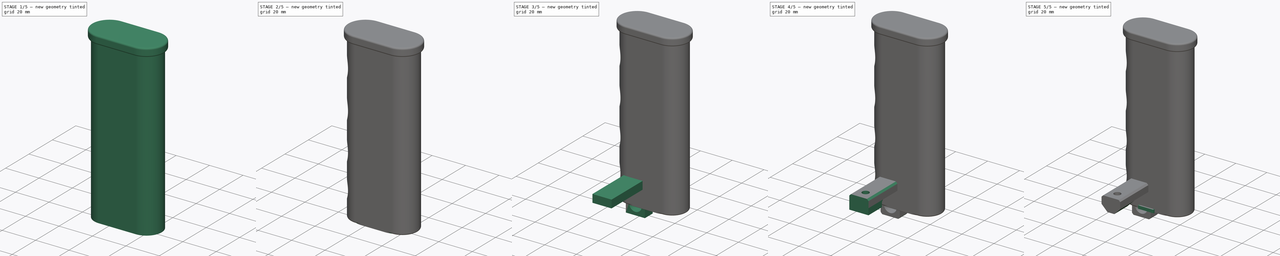
[diagram: build sequence overview — one tinted view per stage of 5, left to right]
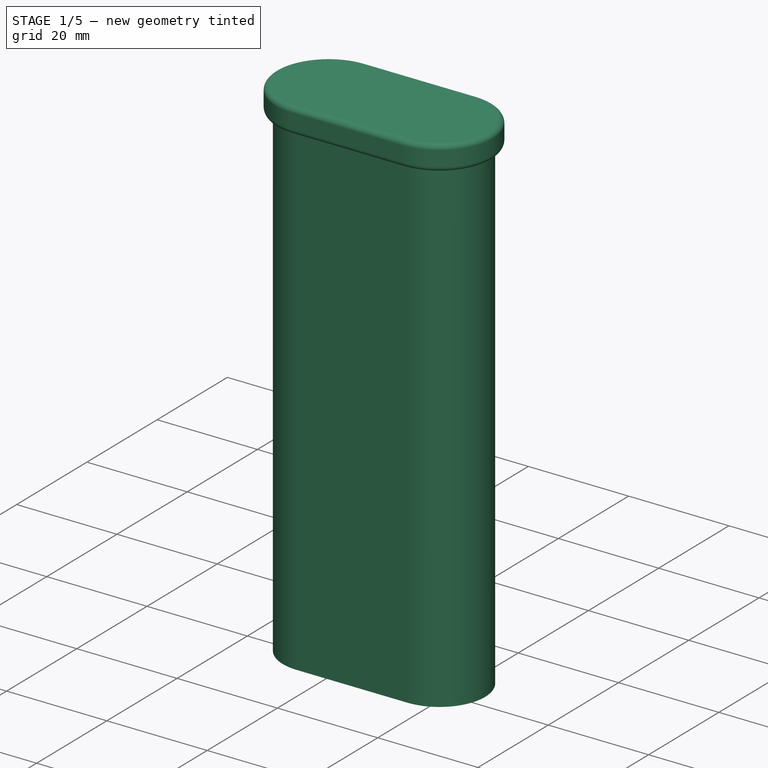
[diagram: stage 1 of 5 — iso view after this stage's code; geometry added in this stage tinted green]
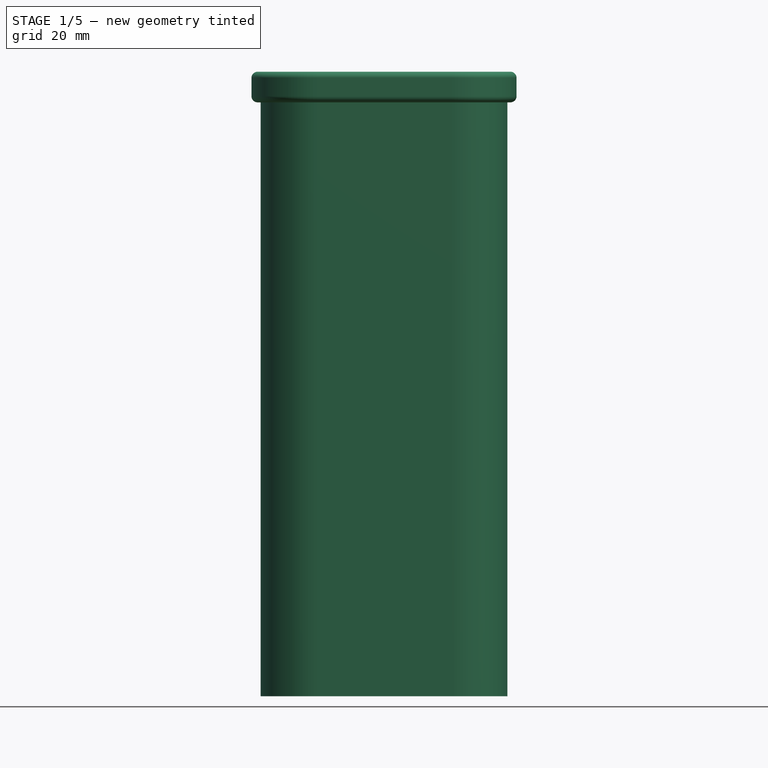
[diagram: stage 1 of 5 — front view after this stage's code; geometry added in this stage tinted green]
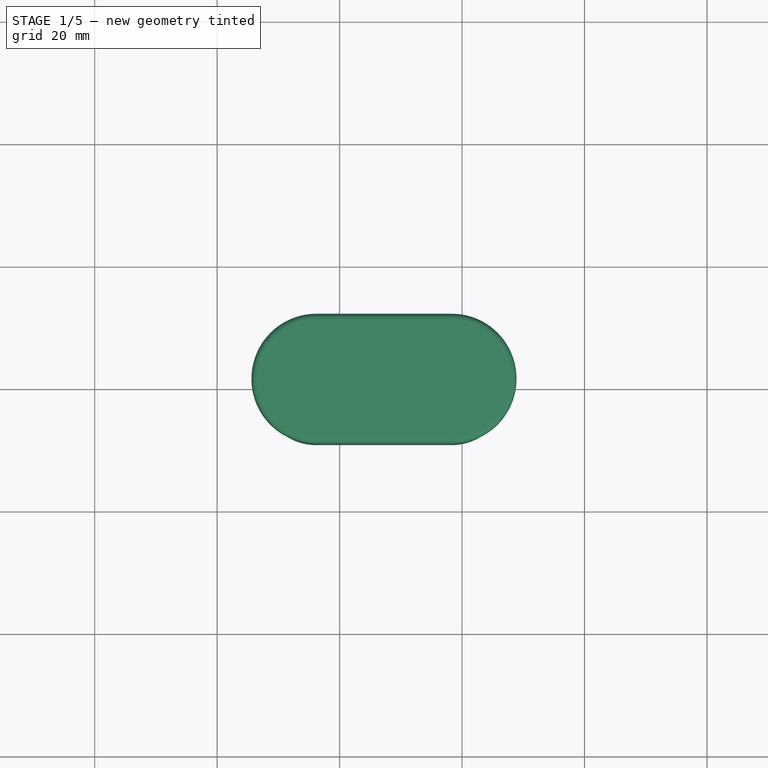
[diagram: stage 1 of 5 — top view after this stage's code; geometry added in this stage tinted green]
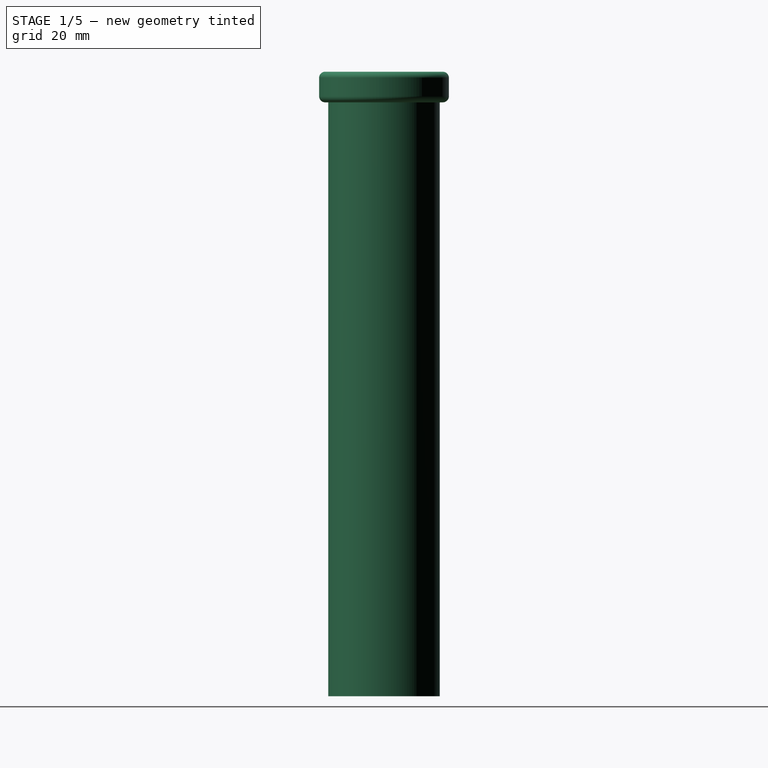
[diagram: stage 1 of 5 — right view after this stage's code; geometry added in this stage tinted green]
FCSTD DOCUMENT  (FreeCAD 0.19R22198 (Git))
Label: Drift Handbrake
License: All rights reserved
LicenseURL: http://en.wikipedia.org/wiki/All_rights_reserved
objects: Sketcher::SketchObject×14, PartDesign::Pad×13, PartDesign::Fillet×6, PartDesign::Body×5, PartDesign::Chamfer×4, PartDesign::Pocket×3, Part::Cut×1
note: 72 computed .brp shape members not serialized (recipe doc carries the construction recipe); baked Part::Feature solids carry a one-line shape summary decoded from their .brp

FEATURE [PartDesign::Body] Body002
  Group = -> [Sketch009,Pad007,Sketch010,Pad008,Fillet,Fillet001,Fillet002]
  Origin = -> Origin002
  Placement = pos=(-39,11,0) rot=(0,0,1;0rad)
  Tip = -> Fillet002
FEATURE [Sketcher::SketchObject] Sketch011
  MapMode = 5
  Support = -> [XY_Plane003]
  sketch-geometry (14):
    g0: ArcOfCircle CenterX=0 CenterY=0 CenterZ=0 NormalX=0 NormalY=0 NormalZ=1 AngleXU=0 Radius=7.9 StartAngle=1.5708 EndAngle=4.71239
    g1: ArcOfCircle CenterX=14.5 CenterY=2e-16 CenterZ=0 NormalX=0 NormalY=0 NormalZ=1 AngleXU=0 Radius=7.9 StartAngle=4.71239 EndAngle=7.85398
    g2: LineSegment StartX=3.41867e-08 StartY=-7.9 StartZ=0 EndX=14.5 EndY=-7.9 EndZ=0
    g3: LineSegment StartX=5e-16 StartY=7.9 StartZ=0 EndX=14.5 EndY=7.9 EndZ=0
    g4: GeomPoint X=-7.9 Y=0 Z=0
    g5: GeomPoint X=22.4 Y=2e-16 Z=0
    g6: ArcOfCircle CenterX=-3.8 CenterY=0 CenterZ=0 NormalX=0 NormalY=0 NormalZ=1 AngleXU=0 Radius=9.1 StartAngle=1.5708 EndAngle=4.71239
    g7: ArcOfCircle CenterX=18.3 CenterY=0 CenterZ=0 NormalX=0 NormalY=0 NormalZ=1 AngleXU=0 Radius=9.1 StartAngle=4.71239 EndAngle=7.85398
    g8: LineSegment StartX=-3.8 StartY=-9.1 StartZ=0 EndX=18.3 EndY=-9.1 EndZ=0
    g9: LineSegment StartX=-3.8 StartY=9.1 StartZ=0 EndX=18.3 EndY=9.1 EndZ=0
    g10: GeomPoint X=-12.9 Y=0 Z=0
    g11: GeomPoint X=27.4 Y=0 Z=0
    g12: LineSegment [constr] StartX=0 StartY=0 StartZ=0 EndX=-7.9 EndY=0 EndZ=0
    g13: LineSegment [constr] StartX=-7.9 StartY=0 StartZ=0 EndX=-9.1 EndY=0 EndZ=0
  constraints (36):
    c: Tangent(g2,g1)
    c: Tangent(g3,g1)
    c: Horizontal(g2)
    c: Equal(g0,g1)
    c: Coincident(g0,g-1)
    c: DistanceY(g0,g0) = 15.8
    c: PointOnObject(g4,g0)
    c: PointOnObject(g5,g1)
    c: Horizontal(g4,g0)
    c: Horizontal(g5,g1)
    c: DistanceX(g4,g5) = 30.3
    c: Tangent(g8,g7)
    c: Tangent(g9,g7)
    c: Horizontal(g8)
    c: Equal(g6,g7)
    c: PointOnObject(g6,g-1)
    c: PointOnObject(g10,g6)
    c: PointOnObject(g11,g7)
    c: Horizontal(g10,g0)
    c: Horizontal(g0,g11)
    c: DistanceX(g10,g4) = 5
    c: DistanceX(g5,g11) = 5
    c: Horizontal(g9)
    c: Coincident(g6,g8)
    c: Coincident(g6,g9)
    c: DistanceY(g6,g0) = 1.2
    c: DistanceY(g0,g6) = 1.2
    c: Coincident(g3,g0)
    c: Coincident(g2,g0)
    c: PointOnObject(g0,g-2)
    c: Vertical(g6,g6)
    c: Coincident(g12,g0)
    c: Coincident(g12,g4)
    c: Coincident(g13,g4)
    c: PointOnObject(g13,g-1)
    c: DistanceX(g13,g13) = 1.2
FEATURE [PartDesign::Pad] Pad009
  Length = 100
  Length2 = 100
  Profile = -> Sketch011
  Type = 0
FEATURE [PartDesign::Body] Body004
  Group = -> [Sketch012,Pad010]
  Origin = -> Origin004
  Tip = -> Pad010
FEATURE [Sketcher::SketchObject] Sketch013
  ExternalGeometry = -> [Pad009]
  MapMode = 5
  Placement = pos=(0,0,100) rot=(0,0,1;0rad)
  Support = -> [Pad009]
  sketch-geometry (4):
    g0: ArcOfCircle CenterX=-3.8 CenterY=0 CenterZ=0 NormalX=0 NormalY=0 NormalZ=1 AngleXU=0 Radius=10.6 StartAngle=1.5708 EndAngle=4.71239
    g1: ArcOfCircle CenterX=18.3 CenterY=0 CenterZ=0 NormalX=0 NormalY=0 NormalZ=1 AngleXU=0 Radius=10.6 StartAngle=4.71239 EndAngle=7.85398
    g2: LineSegment StartX=-3.8 StartY=10.6 StartZ=0 EndX=18.3 EndY=10.6 EndZ=0
    g3: LineSegment StartX=-3.8 StartY=-10.6 StartZ=0 EndX=18.3 EndY=-10.6 EndZ=0
  constraints (12):
    c: DistanceY(g-3,g1) = 1.5
    c: Vertical(g1,g-3)
    c: Coincident(g1,g-3)
    c: Equal(g1,g0)
    c: Coincident(g0,g-4)
    c: Vertical(g0,g-4)
    c: Vertical(g-4,g0)
    c: Vertical(g-3,g1)
    c: Coincident(g2,g0)
    c: Coincident(g2,g1)
    c: Coincident(g3,g0)
    c: Coincident(g3,g1)
FEATURE [PartDesign::Pad] Pad011
  BaseFeature = -> Pad009
  Length = 2
  Length2 = 100
  Profile = -> Sketch013
  Type = 0
FEATURE [PartDesign::Pad] Pad012
  BaseFeature = -> Pad011
  Length = 3
  Length2 = 100
  Profile = -> Pad011 [Face4]
  Type = 0
FEATURE [PartDesign::Fillet] Fillet003
  Base = -> Pad012 [Edge13]
  BaseFeature = -> Pad012
  Radius = 1
  SupportTransform = false
FEATURE [PartDesign::Fillet] Fillet004
  Base = -> Fillet003 [Edge13]
  BaseFeature = -> Fillet003
  Radius = 1
  SupportTransform = false
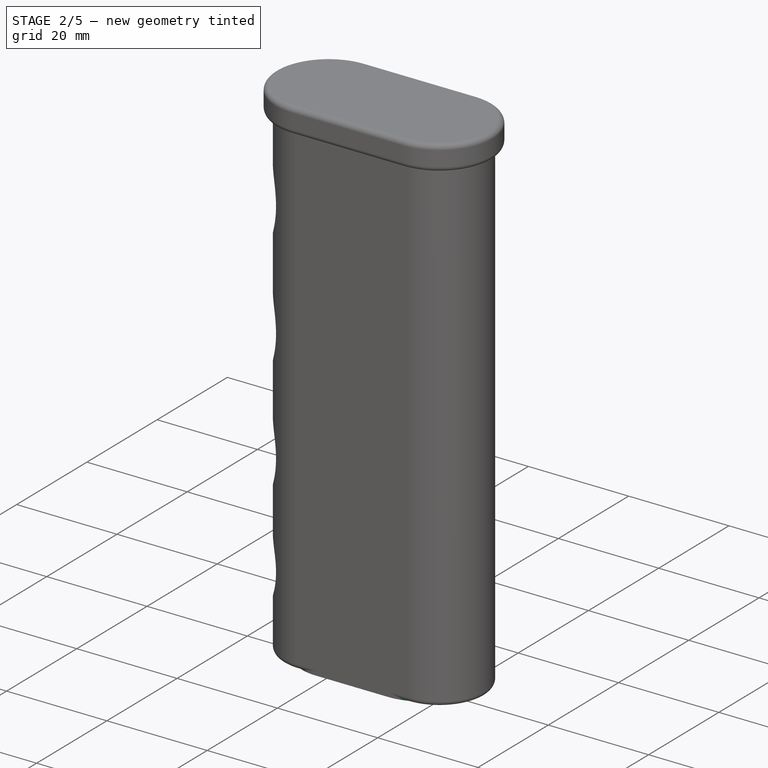
[diagram: stage 2 of 5 — iso view after this stage's code; geometry added in this stage tinted green]
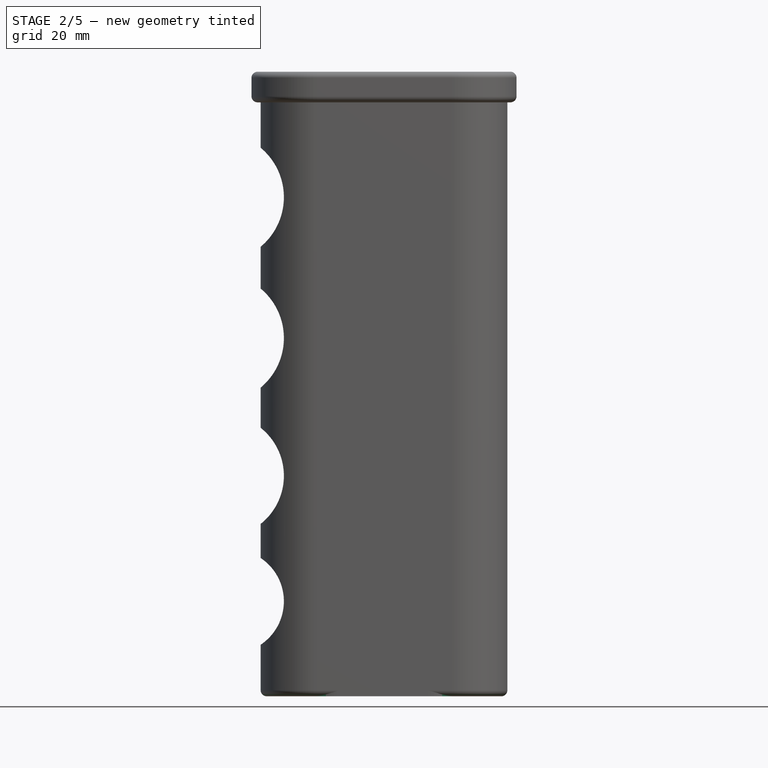
[diagram: stage 2 of 5 — front view after this stage's code; geometry added in this stage tinted green]
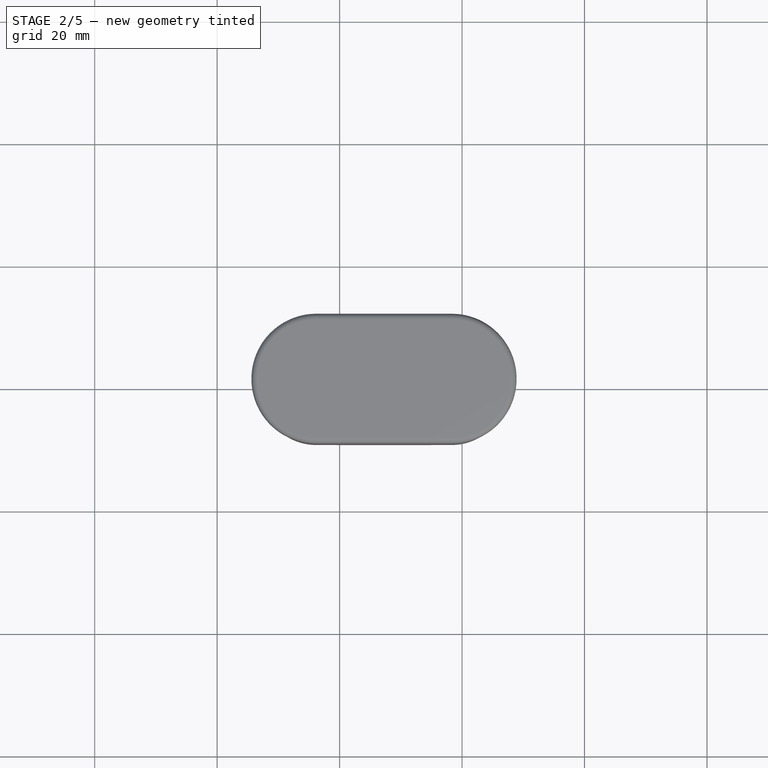
[diagram: stage 2 of 5 — top view after this stage's code; geometry added in this stage tinted green]
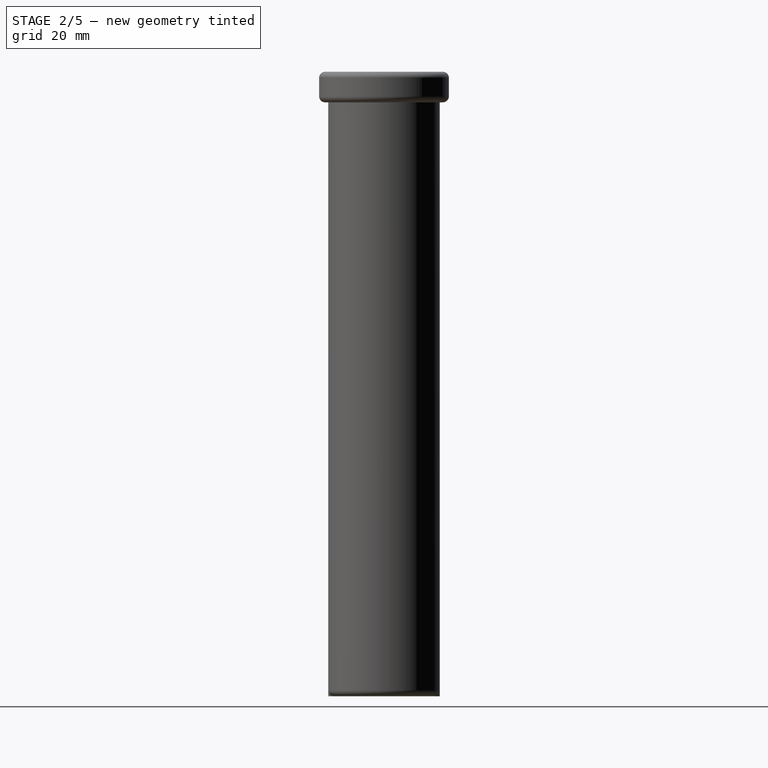
[diagram: stage 2 of 5 — right view after this stage's code; geometry added in this stage tinted green]
FEATURE [PartDesign::Body] Body
  Group = -> [Sketch,Pad,Pad001,Sketch001,Pad002,Sketch002,Pocket,Sketch003,Pad003,Chamfer,Pocket001,Chamfer001,Chamfer002,Sketch008,Chamfer003]
  Origin = -> Origin
  Tip = -> Chamfer003
FEATURE [Sketcher::SketchObject] Sketch009
  MapMode = 5
  Support = -> [XY_Plane002]
  sketch-geometry (12):
    g0: ArcOfCircle CenterX=0 CenterY=0 CenterZ=0 NormalX=0 NormalY=0 NormalZ=1 AngleXU=0 Radius=7.9 StartAngle=1.5708 EndAngle=4.71239
    g1: ArcOfCircle CenterX=14.5 CenterY=-4e-16 CenterZ=0 NormalX=0 NormalY=0 NormalZ=1 AngleXU=0 Radius=7.9 StartAngle=4.71239 EndAngle=7.85398
    g2: LineSegment StartX=0 StartY=-7.9 StartZ=0 EndX=14.5 EndY=-7.9 EndZ=0
    g3: LineSegment StartX=-1e-15 StartY=7.9 StartZ=0 EndX=14.5 EndY=7.9 EndZ=0
    g4: GeomPoint X=-7.9 Y=0 Z=0
    g5: GeomPoint X=22.4 Y=-4e-16 Z=0
    g6: ArcOfCircle CenterX=1e-16 CenterY=0 CenterZ=0 NormalX=0 NormalY=0 NormalZ=1 AngleXU=0 Radius=9.1 StartAngle=1.5708 EndAngle=4.71239
    g7: ArcOfCircle CenterX=14.5 CenterY=6e-16 CenterZ=0 NormalX=0 NormalY=0 NormalZ=1 AngleXU=0 Radius=9.1 StartAngle=4.71239 EndAngle=7.85398
    g8: LineSegment StartX=1e-16 StartY=-9.1 StartZ=0 EndX=14.5 EndY=-9.1 EndZ=0
    g9: LineSegment StartX=-1e-15 StartY=9.1 StartZ=0 EndX=14.5 EndY=9.1 EndZ=0
    g10: GeomPoint X=-9.1 Y=0 Z=0
    g11: GeomPoint X=23.6 Y=0 Z=0
  constraints (27):
    c: Tangent(g0,g3)
    c: Tangent(g0,g2)
    c: Tangent(g2,g1)
    c: Tangent(g3,g1)
    c: Horizontal(g2)
    c: Equal(g0,g1)
    c: Coincident(g0,g-1)
    c: DistanceY(g0,g0) = 15.8
    c: PointOnObject(g4,g0)
    c: PointOnObject(g5,g1)
    c: Horizontal(g4,g0)
    c: Horizontal(g5,g1)
    c: DistanceX(g4,g5) = 30.3
    c: Tangent(g6,g9)
    c: Tangent(g6,g8)
    c: Tangent(g8,g7)
    c: Tangent(g9,g7)
    c: Horizontal(g8)
    c: Equal(g6,g7)
    c: PointOnObject(g6,g-1)
    c: PointOnObject(g10,g6)
    c: PointOnObject(g11,g7)
    c: Horizontal(g10,g0)
    c: Horizontal(g0,g11)
    c: DistanceX(g10,g4) = 1.2
    c: DistanceX(g5,g11) = 1.2
    c: Vertical(g0,g6)
FEATURE [PartDesign::Pad] Pad007
  Length = 5
  Length2 = 100
  Profile = -> Sketch009
  Type = 0
FEATURE [Sketcher::SketchObject] Sketch010
  ExternalGeometry = -> [Pad007]
  MapMode = 5
  Placement = pos=(0,0,5) rot=(0,0,1;0rad)
  Support = -> [Pad007]
  sketch-geometry (4):
    g0: ArcOfCircle CenterX=-2e-16 CenterY=0 CenterZ=0 NormalX=0 NormalY=0 NormalZ=1 AngleXU=0 Radius=9.1 StartAngle=1.5708 EndAngle=4.71239
    g1: ArcOfCircle CenterX=14.5 CenterY=-1.49e-14 CenterZ=0 NormalX=0 NormalY=0 NormalZ=1 AngleXU=0 Radius=9.1 StartAngle=4.71239 EndAngle=7.85398
    g2: LineSegment StartX=-2e-16 StartY=-9.1 StartZ=0 EndX=14.5 EndY=-9.1 EndZ=0
    g3: LineSegment StartX=-1.3e-15 StartY=9.1 StartZ=0 EndX=14.5 EndY=9.1 EndZ=0
  constraints (8):
    c: Tangent(g0,g3)
    c: Tangent(g0,g2)
    c: Tangent(g2,g1)
    c: Tangent(g3,g1)
    c: Horizontal(g2)
    c: PointOnObject(g0,g-1)
    c: Coincident(g-4,g0)
    c: Coincident(g-3,g1)
FEATURE [PartDesign::Pad] Pad008
  BaseFeature = -> Pad007
  Length = 2
  Length2 = 100
  Profile = -> Sketch010
  Type = 0
FEATURE [PartDesign::Fillet] Fillet
  Base = -> Pad008 [Edge23,Edge32,Edge21,Edge18]
  BaseFeature = -> Pad008
  Radius = 1.5
  SupportTransform = false
FEATURE [Sketcher::SketchObject] Sketch012
  MapMode = 5
  Placement = pos=(0,0,0) rot=(1,0,0;1.5708rad)
  Support = -> [XZ_Plane004]
  sketch-geometry (19):
    g0: LineSegment StartX=-27.8 StartY=92 StartZ=0 EndX=-27.8 EndY=7 EndZ=0
    g1: ArcOfCircle CenterX=-19.6 CenterY=81.5 CenterZ=0 NormalX=0 NormalY=0 NormalZ=1 AngleXU=0 Radius=10.5 StartAngle=4.71239 EndAngle=7.85398
    g2: LineSegment [constr] StartX=0 StartY=100 StartZ=0 EndX=-9.1 EndY=100 EndZ=0
    g3: LineSegment [constr] StartX=-9.1 StartY=100 StartZ=0 EndX=-9.1 EndY=0 EndZ=0
    g4: ArcOfCircle CenterX=-19.6 CenterY=58.5 CenterZ=0 NormalX=0 NormalY=0 NormalZ=1 AngleXU=0 Radius=10.5 StartAngle=4.71239 EndAngle=7.85398
    g5: ArcOfCircle CenterX=-19.1 CenterY=36 CenterZ=0 NormalX=0 NormalY=0 NormalZ=1 AngleXU=0 Radius=10 StartAngle=4.71239 EndAngle=7.85398
    g6: ArcOfCircle CenterX=-17.6 CenterY=15.5 CenterZ=0 NormalX=0 NormalY=0 NormalZ=1 AngleXU=0 Radius=8.5 StartAngle=4.71239 EndAngle=7.85398
    g7: ArcOfCircle CenterX=-19.6 CenterY=70 CenterZ=0 NormalX=0 NormalY=0 NormalZ=1 AngleXU=0 Radius=1 StartAngle=1.5708 EndAngle=4.71239
    g8: ArcOfCircle CenterX=-19.2159 CenterY=47.0335 CenterZ=0 NormalX=0 NormalY=0 NormalZ=1 AngleXU=0 Radius=1.04 StartAngle=1.94906 EndAngle=4.82409
    g9: ArcOfCircle CenterX=-19.0275 CenterY=25.2284 CenterZ=0 NormalX=0 NormalY=0 NormalZ=1 AngleXU=0 Radius=0.775 StartAngle=1.66445 EndAngle=4.03995
    g10: LineSegment StartX=-27.8 StartY=7 StartZ=0 EndX=-17.6 EndY=7 EndZ=0
    g11: LineSegment StartX=-27.8 StartY=92 StartZ=0 EndX=-19.6 EndY=92 EndZ=0
    g12-g15: Circle [constr] x4 (B-spline internal-alignment scaffolding for g16; pole/knot coordinates omitted)
    g16: BSplineCurve PolesCount=4 KnotsCount=2 Degree=3 IsPeriodic=0
    g17: GeomPoint [constr] X=-19.5103 Y=24.6221 Z=0
    g18: GeomPoint [constr] X=-17.6 Y=24 Z=0
  constraints (54):
    c: Vertical(g0)
    c: Diameter(g1) = 21
    c: Vertical(g1,g1)
    c: PointOnObject(g2,g-2)
    c: Horizontal(g2)
    c: DistanceX(g2,g2) = 9.1
    c: Coincident(g3,g2)
    c: Tangent(g3,g1)
    c: Vertical(g3)
    c: Vertical(g1,g1)
    c: DistanceY(g3,g3) = 100
    c: PointOnObject(g3,g-1)
    c: Diameter(g4) = 21
    c: Tangent(g4,g3)
    c: Vertical(g4,g4)
    c: Vertical(g4,g4)
    c: Diameter(g5) = 20
    c: Tangent(g5,g3)
    c: Vertical(g5,g5)
    c: Vertical(g5,g5)
    c: Diameter(g6) = 17
    c: Vertical(g6,g6)
    c: Vertical(g6,g6)
    c: Tangent(g6,g3)
    c: DistanceY(g4,g1) = 2
    c: DistanceY(g5,g4) = 2
    c: DistanceY(g6,g5) = 2
    c: Coincident(g7,g1)
    c: Coincident(g7,g4)
    c: Vertical(g1,g7)
    c: Coincident(g8,g4)
    c: Coincident(g8,g5)
    c: Coincident(g9,g5)
    c: Horizontal(g0,g1)
    c: Horizontal(g0,g6)
    c: Coincident(g10,g0)
    c: Coincident(g10,g6)
    c: Coincident(g11,g1)
    c: Horizontal(g11)
    c: DistanceY(g3,g0) = 7
    c: DistanceX(g0,g3) = 18.7
    c: DistanceX(g11,g11) = 8.2
    c: Diameter(g9) = 1.55
    c: Diameter(g8) = 2.08
    c: Coincident(g16,g9)
    c: Radius(g12) = 0.2
    c: Equal(g12,g13)
    c: Equal(g12,g14)
    c: Coincident(g14,g6)
    c: Equal(g12,g15)
    c: InternalAlignment(g12-g15 -> g16) x4
    c: InternalAlignment(g17,g16)
    c: InternalAlignment(g18,g16)
    c: Block(g16)
FEATURE [PartDesign::Pad] Pad010
  Length = 10
  Length2 = 10
  Placement = pos=(0,0,0) rot=(1,0,0;1.5708rad)
  Profile = -> Sketch012
  Type = 4
FEATURE [PartDesign::Fillet] Fillet005
  Base = -> Fillet004 [Edge41]
  BaseFeature = -> Fillet004
  Radius = 1
  SupportTransform = false
FEATURE [PartDesign::Body] Body003
  Group = -> [Sketch011,Pad009,Sketch013,Pad011,Pad012,Fillet003,Fillet004,Fillet005]
  Origin = -> Origin003
  Tip = -> Fillet005
FEATURE [Part::Cut] Cut
  Base = -> Body003
  Tool = -> Body004
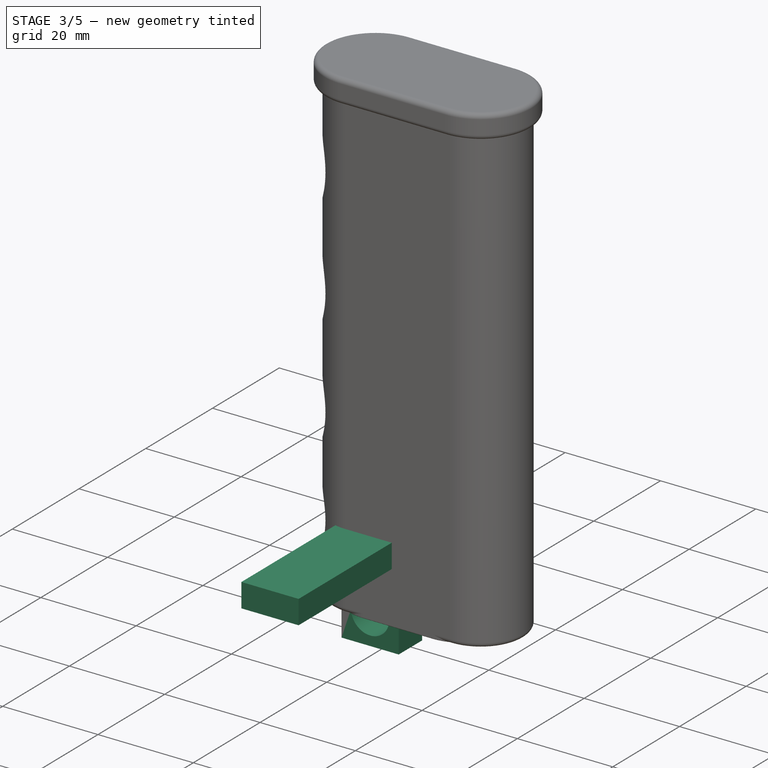
[diagram: stage 3 of 5 — iso view after this stage's code; geometry added in this stage tinted green]
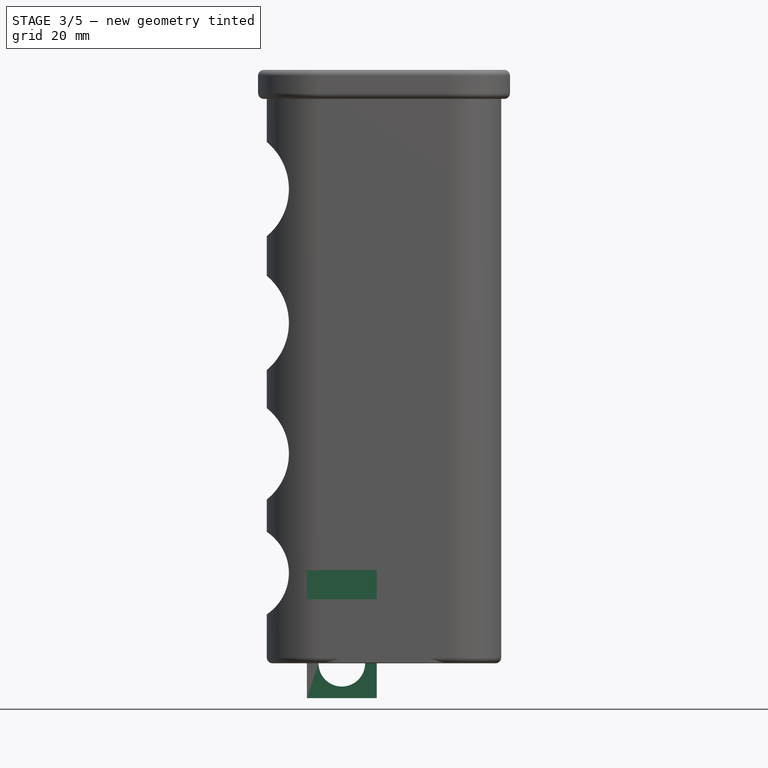
[diagram: stage 3 of 5 — front view after this stage's code; geometry added in this stage tinted green]
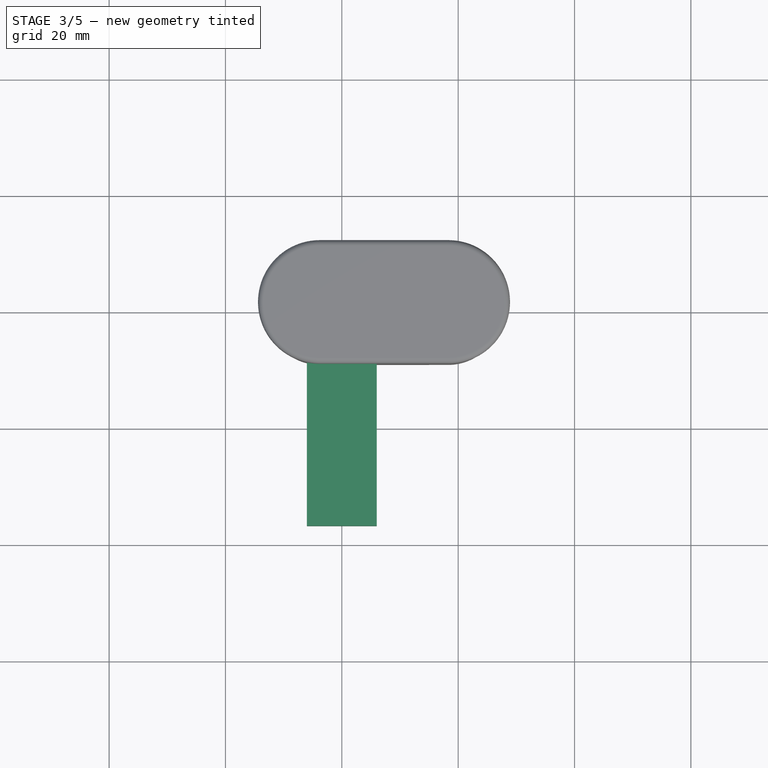
[diagram: stage 3 of 5 — top view after this stage's code; geometry added in this stage tinted green]
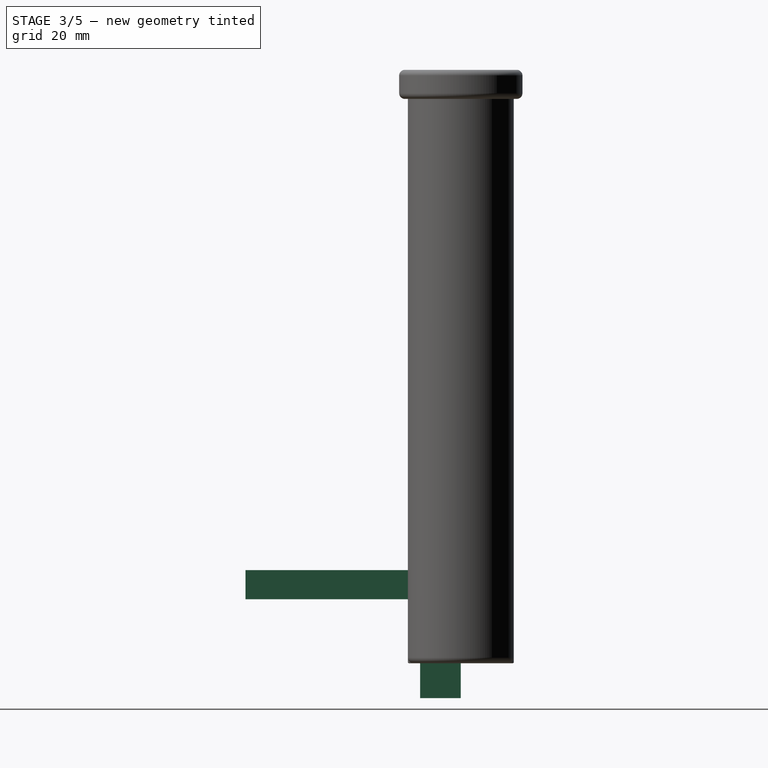
[diagram: stage 3 of 5 — right view after this stage's code; geometry added in this stage tinted green]
FEATURE [Sketcher::SketchObject] Sketch
  MapMode = 5
  Placement = pos=(0,0,0) rot=(1,0,0;1.5708rad)
  Support = -> [XZ_Plane]
  sketch-geometry (6):
    g0: Circle CenterX=0 CenterY=0 CenterZ=0 NormalX=0 NormalY=0 NormalZ=1 AngleXU=0 Radius=4
    g1: LineSegment StartX=6 StartY=-6 StartZ=0 EndX=6 EndY=6 EndZ=0
    g2: LineSegment StartX=6 StartY=6 StartZ=0 EndX=-6 EndY=6 EndZ=0
    g3: LineSegment StartX=-6 StartY=6 StartZ=0 EndX=-6 EndY=-6 EndZ=0
    g4: LineSegment StartX=-6 StartY=-6 StartZ=0 EndX=6 EndY=-6 EndZ=0
    g5: Circle [constr] CenterX=0 CenterY=0 CenterZ=0 NormalX=0 NormalY=0 NormalZ=1 AngleXU=0 Radius=8.48528
  constraints (16):
    c: Coincident(g0,g-1)
    c: Diameter(g0) = 8
    c: Coincident(g1,g2)
    c: Coincident(g2,g3)
    c: Coincident(g3,g4)
    c: Coincident(g4,g1)
    c: Equal(g1,g2)
    c: Equal(g1,g3)
    c: Equal(g1,g4)
    c: PointOnObject(g1,g5)
    c: PointOnObject(g2,g5)
    c: PointOnObject(g3,g5)
    c: PointOnObject(g4,g5)
    c: Coincident(g5,g0)
    c: Horizontal(g2)
    c: DistanceX(g2,g2) = 12
FEATURE [PartDesign::Pad] Pad
  Length = 7
  Length2 = 100
  Placement = pos=(0,0,0) rot=(1,0,0;1.5708rad)
  Profile = -> Sketch
  Type = 0
FEATURE [PartDesign::Pad] Pad001
  BaseFeature = -> Pad
  Length = 10
  Length2 = 100
  Placement = pos=(0,0,0) rot=(1,0,0;1.5708rad)
  Profile = -> Pad [Face2]
  Type = 0
FEATURE [Sketcher::SketchObject] Sketch001
  ExternalGeometry = -> [Pad001]
  MapMode = 5
  Placement = pos=(0,-7,7.8e-15) rot=(1,0,0;1.5708rad)
  Support = -> [Pad001]
  sketch-geometry (4):
    g0: LineSegment StartX=-6 StartY=16 StartZ=0 EndX=6 EndY=16 EndZ=0
    g1: LineSegment StartX=6 StartY=16 StartZ=0 EndX=6 EndY=11 EndZ=0
    g2: LineSegment StartX=6 StartY=11 StartZ=0 EndX=-6 EndY=11 EndZ=0
    g3: LineSegment StartX=-6 StartY=11 StartZ=0 EndX=-6 EndY=16 EndZ=0
  constraints (11):
    c: Coincident(g0,g1)
    c: Coincident(g1,g2)
    c: Coincident(g2,g3)
    c: Coincident(g3,g0)
    c: Horizontal(g0)
    c: Horizontal(g2)
    c: Vertical(g1)
    c: Vertical(g3)
    c: Coincident(g0,g-3)
    c: Vertical(g-3,g1)
    c: DistanceY(g3,g3) = 5
FEATURE [PartDesign::Pad] Pad002
  BaseFeature = -> Pad001
  Length = 30
  Length2 = 100
  Placement = pos=(0,0,0) rot=(1,0,0;1.5708rad)
  Profile = -> Sketch001
  Type = 0
FEATURE [PartDesign::Fillet] Fillet001
  Base = -> Fillet [Edge32,Edge31,Edge29,Edge30]
  BaseFeature = -> Fillet
  Radius = 0.5
  SupportTransform = false
FEATURE [PartDesign::Fillet] Fillet002
  Base = -> Fillet001 [Edge6,Edge5,Edge8,Edge7]
  BaseFeature = -> Fillet001
  Radius = 0.2
  SupportTransform = false
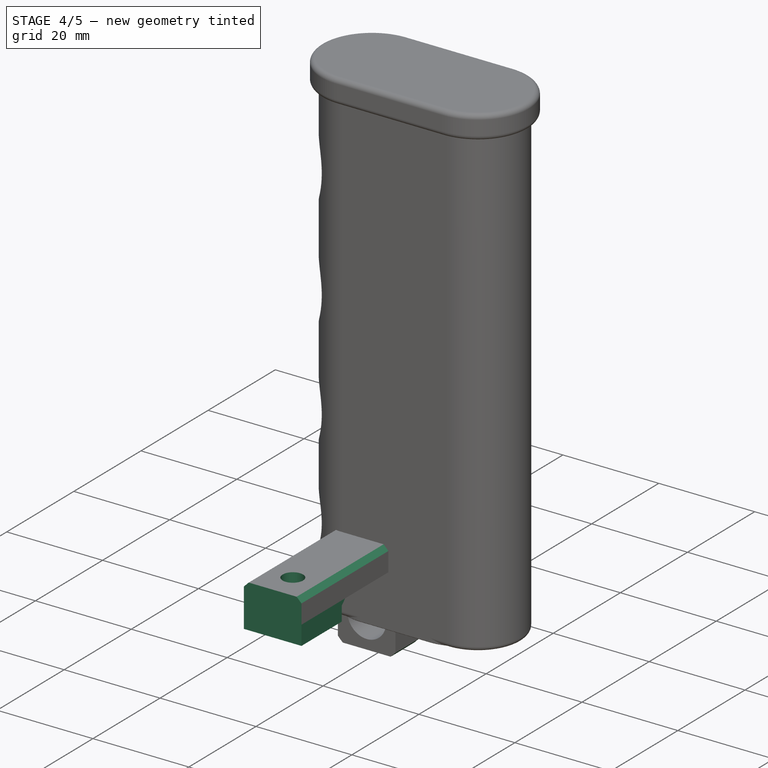
[diagram: stage 4 of 5 — iso view after this stage's code; geometry added in this stage tinted green]
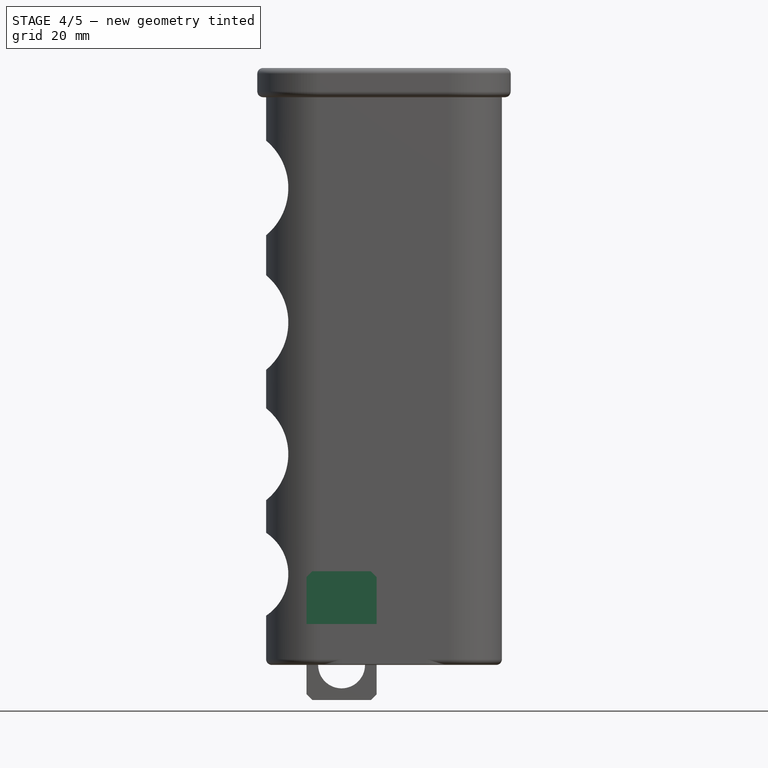
[diagram: stage 4 of 5 — front view after this stage's code; geometry added in this stage tinted green]
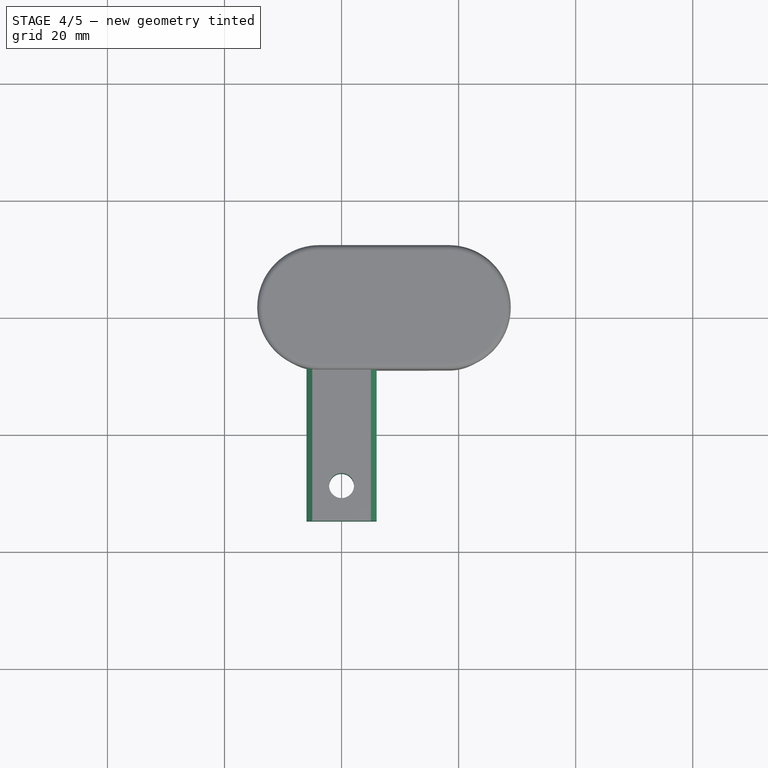
[diagram: stage 4 of 5 — top view after this stage's code; geometry added in this stage tinted green]
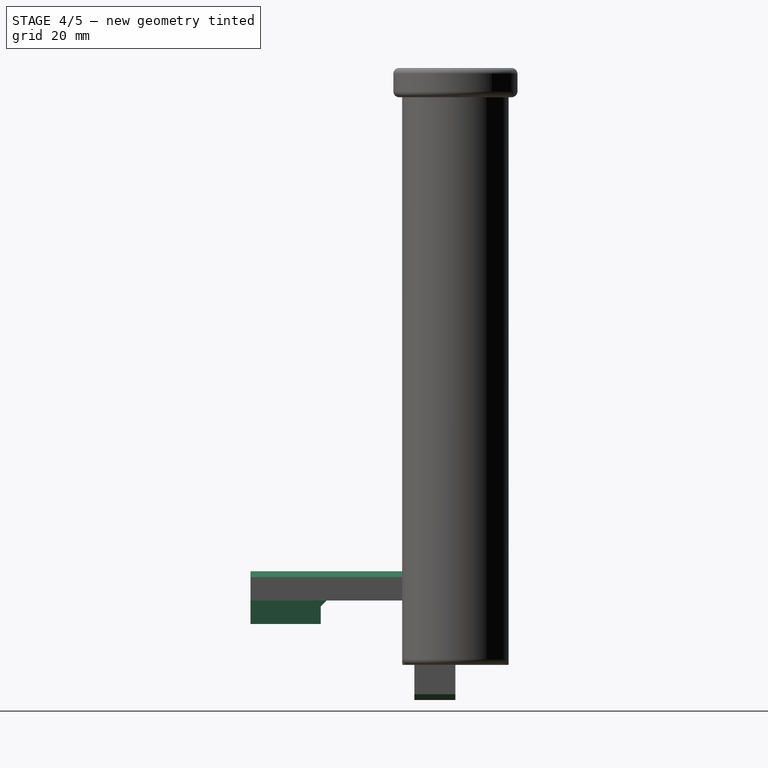
[diagram: stage 4 of 5 — right view after this stage's code; geometry added in this stage tinted green]
FEATURE [Sketcher::SketchObject] Sketch002
  ExternalGeometry = -> [Pad002]
  MapMode = 5
  Placement = pos=(0,1.71e-14,11) rot=(1,0,0;3.14159rad)
  Support = -> [Pad002]
  sketch-geometry (1):
    g0: Circle CenterX=0 CenterY=29 CenterZ=0 NormalX=0 NormalY=0 NormalZ=1 AngleXU=0 Radius=2.125
  constraints (3):
    c: PointOnObject(g0,g-2)
    c: DistanceY(g0,g-3) = 8
    c: Diameter(g0) = 4.25
FEATURE [PartDesign::Pocket] Pocket
  BaseFeature = -> Pad002
  Length = 5
  Length2 = 100
  Placement = pos=(0,0,0) rot=(1,0,0;1.5708rad)
  Profile = -> Sketch002
  Type = 1
FEATURE [Sketcher::SketchObject] Sketch003
  ExternalGeometry = -> [Pocket]
  MapMode = 5
  Placement = pos=(0,1.71e-14,11) rot=(1,0,0;3.14159rad)
  Support = -> [Pocket]
  sketch-geometry (6):
    g0: Circle CenterX=0 CenterY=29 CenterZ=0 NormalX=0 NormalY=0 NormalZ=1 AngleXU=0 Radius=2.125
    g1: LineSegment StartX=6 StartY=35 StartZ=0 EndX=-6 EndY=35 EndZ=0
    g2: LineSegment StartX=-6 StartY=35 StartZ=0 EndX=-6 EndY=23 EndZ=0
    g3: LineSegment StartX=-6 StartY=23 StartZ=0 EndX=6 EndY=23 EndZ=0
    g4: LineSegment StartX=6 StartY=23 StartZ=0 EndX=6 EndY=35 EndZ=0
    g5: Circle [constr] CenterX=0 CenterY=29 CenterZ=0 NormalX=0 NormalY=0 NormalZ=1 AngleXU=0 Radius=8.48528
  constraints (16):
    c: Coincident(g0,g-3)
    c: Diameter(g0) = 4.25
    c: Coincident(g1,g2)
    c: Coincident(g2,g3)
    c: Coincident(g3,g4)
    c: Coincident(g4,g1)
    c: Equal(g1,g2)
    c: Equal(g1,g3)
    c: Equal(g1,g4)
    c: PointOnObject(g1,g5)
    c: PointOnObject(g2,g5)
    c: PointOnObject(g3,g5)
    c: PointOnObject(g4,g5)
    c: Coincident(g5,g0)
    c: Horizontal(g1)
    c: Vertical(g-4,g1)
FEATURE [PartDesign::Pad] Pad003
  BaseFeature = -> Pocket
  Length = 4
  Length2 = 100
  Placement = pos=(0,0,0) rot=(1,0,0;1.5708rad)
  Profile = -> Sketch003
  Type = 0
FEATURE [PartDesign::Chamfer] Chamfer
  Angle = 45
  Base = -> Pad003 [Edge22]
  BaseFeature = -> Pad003
  ChamferType = 0
  FlipDirection = false
  Placement = pos=(0,0,0) rot=(1,0,0;1.5708rad)
  Size = 1
  Size2 = 1
  SupportTransform = false
FEATURE [PartDesign::Pocket] Pocket001
  BaseFeature = -> Chamfer
  Length = 2
  Length2 = 100
  Placement = pos=(0,0,0) rot=(1,0,0;1.5708rad)
  Profile = -> Chamfer [Face13]
  Type = 0
FEATURE [PartDesign::Chamfer] Chamfer001
  Angle = 45
  Base = -> Pocket001 [Edge32]
  BaseFeature = -> Pocket001
  ChamferType = 0
  FlipDirection = false
  Placement = pos=(0,0,0) rot=(1,0,0;1.5708rad)
  Size = 1
  Size2 = 1
  SupportTransform = false
FEATURE [PartDesign::Chamfer] Chamfer002
  Angle = 45
  Base = -> Chamfer001 [Edge56,Edge42,Edge26,Edge48,Edge21,Edge8]
  BaseFeature = -> Chamfer001
  ChamferType = 0
  FlipDirection = false
  Placement = pos=(0,0,0) rot=(1,0,0;1.5708rad)
  Size = 1
  Size2 = 1
  SupportTransform = false
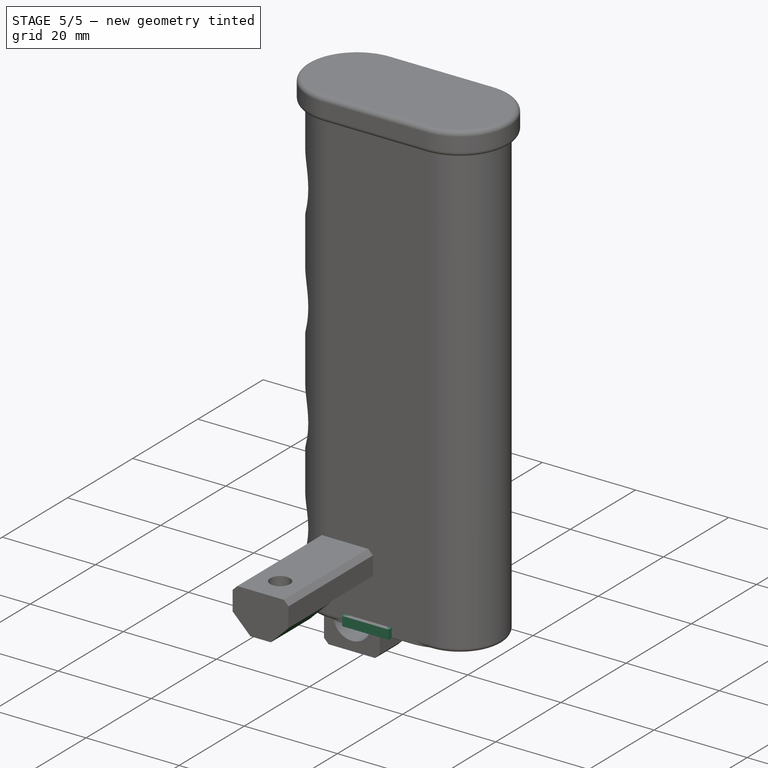
[diagram: stage 5 of 5 — iso view after this stage's code; geometry added in this stage tinted green]
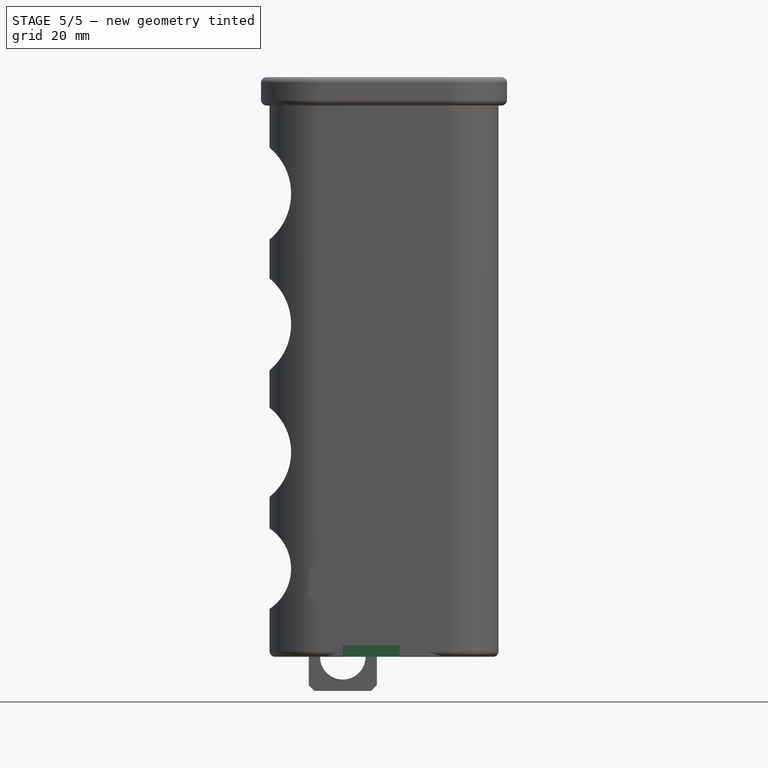
[diagram: stage 5 of 5 — front view after this stage's code; geometry added in this stage tinted green]
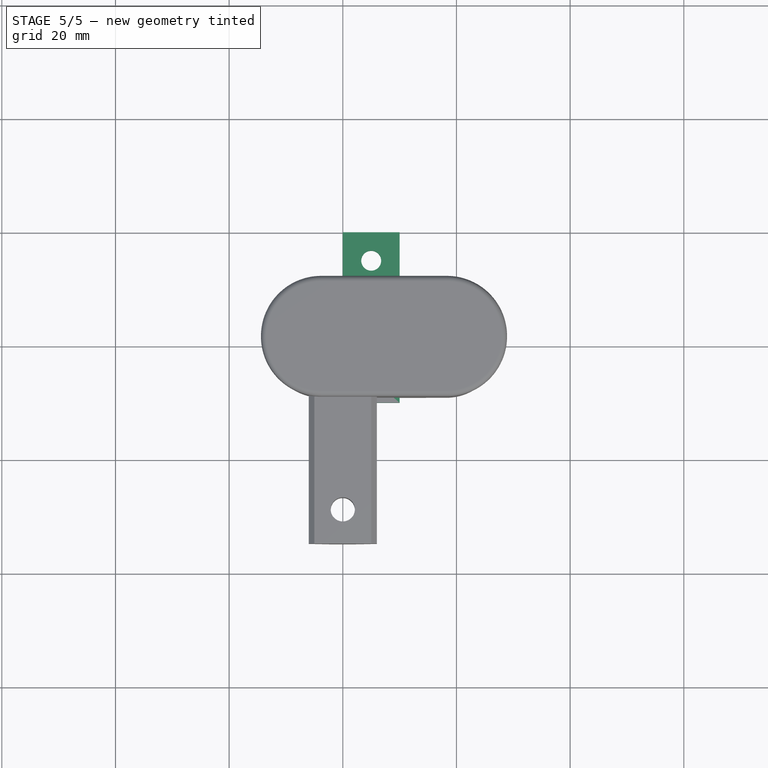
[diagram: stage 5 of 5 — top view after this stage's code; geometry added in this stage tinted green]
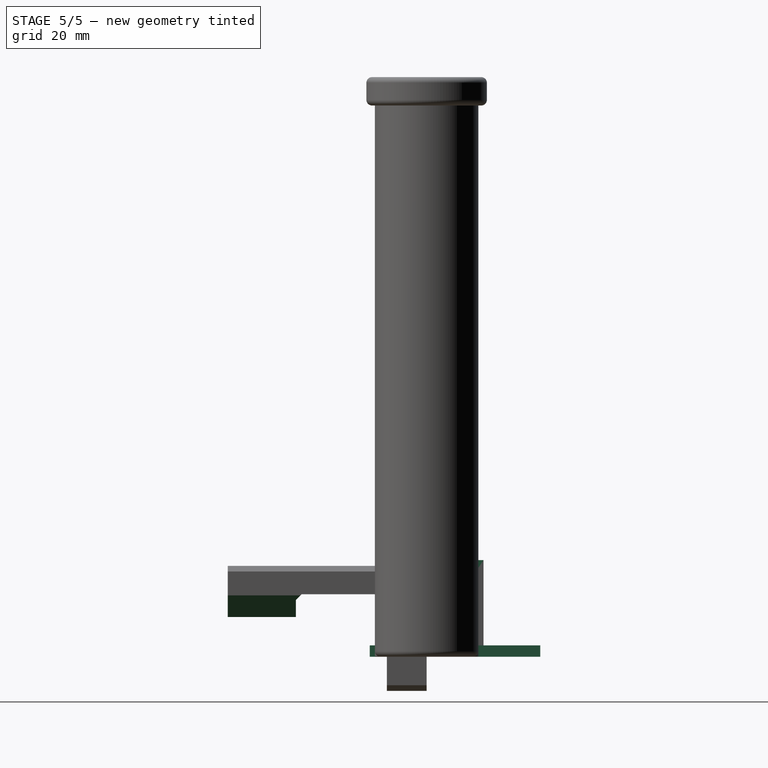
[diagram: stage 5 of 5 — right view after this stage's code; geometry added in this stage tinted green]
FEATURE [Sketcher::SketchObject] Sketch004
  MapMode = 5
  Support = -> [XY_Plane001]
  sketch-geometry (5):
    g0: LineSegment StartX=0 StartY=0 StartZ=0 EndX=10 EndY=0 EndZ=0
    g1: LineSegment StartX=10 StartY=0 StartZ=0 EndX=10 EndY=10 EndZ=0
    g2: LineSegment StartX=10 StartY=10 StartZ=0 EndX=0 EndY=10 EndZ=0
    g3: LineSegment StartX=0 StartY=10 StartZ=0 EndX=0 EndY=0 EndZ=0
    g4: Circle CenterX=5 CenterY=5 CenterZ=0 NormalX=0 NormalY=0 NormalZ=1 AngleXU=0 Radius=1.75
  constraints (13):
    c: Coincident(g0,g1)
    c: Coincident(g1,g2)
    c: Coincident(g2,g3)
    c: Coincident(g3,g0)
    c: Horizontal(g0)
    c: Horizontal(g2)
    c: Vertical(g1)
    c: Vertical(g3)
    c: Coincident(g0,g-1)
    c: DistanceY(g3,g3) = 10
    c: DistanceX(g0,g0) = 10
    c: Diameter(g4) = 3.5
    c: Symmetric(g0,g1,g4)
FEATURE [PartDesign::Pad] Pad004
  Length = 17
  Length2 = 100
  Profile = -> Sketch004
  Type = 0
FEATURE [Sketcher::SketchObject] Sketch005
  ExternalGeometry = -> [Pad004]
  MapMode = 5
  Placement = pos=(0,10,0) rot=(0,0.707107,0.707107;3.14159rad)
  Support = -> [Pad004]
  sketch-geometry (4):
    g0: LineSegment StartX=0 StartY=0 StartZ=0 EndX=-10 EndY=0 EndZ=0
    g1: LineSegment StartX=-10 StartY=0 StartZ=0 EndX=-10 EndY=2 EndZ=0
    g2: LineSegment StartX=-10 StartY=2 StartZ=0 EndX=0 EndY=2 EndZ=0
    g3: LineSegment StartX=0 StartY=2 StartZ=0 EndX=0 EndY=0 EndZ=0
  constraints (11):
    c: Coincident(g0,g1)
    c: Coincident(g1,g2)
    c: Coincident(g2,g3)
    c: Coincident(g3,g0)
    c: Horizontal(g0)
    c: Horizontal(g2)
    c: Vertical(g1)
    c: Vertical(g3)
    c: Coincident(g0,g-1)
    c: Vertical(g-3,g0)
    c: DistanceY(g1,g1) = 2
FEATURE [PartDesign::Pad] Pad005
  BaseFeature = -> Pad004
  Length = 10
  Length2 = 100
  Profile = -> Sketch005
  Type = 0
FEATURE [Sketcher::SketchObject] Sketch006
  ExternalGeometry = -> [Pad005]
  MapMode = 5
  Placement = pos=(0,0,0) rot=(1,0,0;1.5708rad)
  Support = -> [Pad005]
  sketch-geometry (4):
    g0: LineSegment StartX=0 StartY=0 StartZ=0 EndX=10 EndY=0 EndZ=0
    g1: LineSegment StartX=10 StartY=0 StartZ=0 EndX=10 EndY=2 EndZ=0
    g2: LineSegment StartX=10 StartY=2 StartZ=0 EndX=0 EndY=2 EndZ=0
    g3: LineSegment StartX=0 StartY=2 StartZ=0 EndX=0 EndY=0 EndZ=0
  constraints (11):
    c: Coincident(g0,g1)
    c: Coincident(g1,g2)
    c: Coincident(g2,g3)
    c: Coincident(g3,g0)
    c: Horizontal(g0)
    c: Horizontal(g2)
    c: Vertical(g1)
    c: Vertical(g3)
    c: Coincident(g0,g-1)
    c: Vertical(g0,g-3)
    c: DistanceY(g3,g3) = 2
FEATURE [PartDesign::Pad] Pad006
  BaseFeature = -> Pad005
  Length = 10
  Length2 = 100
  Profile = -> Sketch006
  Type = 0
FEATURE [Sketcher::SketchObject] Sketch007
  ExternalGeometry = -> [Pad006]
  MapMode = 5
  Placement = pos=(0,4e-16,2) rot=(0,0,1;0rad)
  Support = -> [Pad006]
  sketch-geometry (2):
    g0: Circle CenterX=5 CenterY=15 CenterZ=0 NormalX=0 NormalY=0 NormalZ=1 AngleXU=0 Radius=1.75
    g1: Circle CenterX=5 CenterY=-5 CenterZ=0 NormalX=0 NormalY=0 NormalZ=1 AngleXU=0 Radius=1.75
  constraints (4):
    c: Equal(g0,g1)
    c: Diameter(g0) = 3.5
    c: Symmetric(g-6,g-3,g0)
    c: Symmetric(g-5,g-4,g1)
FEATURE [PartDesign::Pocket] Pocket002
  BaseFeature = -> Pad006
  Length = 5
  Length2 = 100
  Profile = -> Sketch007
  Type = 1
FEATURE [PartDesign::Body] Body001
  Group = -> [Sketch004,Pad004,Sketch005,Pad005,Sketch006,Pad006,Sketch007,Pocket002]
  Origin = -> Origin001
  Placement = pos=(17,0,0) rot=(0,0,1;0rad)
  Tip = -> Pocket002
FEATURE [Sketcher::SketchObject] Sketch008
  MapMode = 5
  Placement = pos=(0,-35,8.55e-14) rot=(1,0,0;1.5708rad)
  Support = -> [Chamfer002]
FEATURE [PartDesign::Chamfer] Chamfer003
  Angle = 45
  Base = -> Chamfer002 [Edge18,Edge46]
  BaseFeature = -> Chamfer002
  ChamferType = 0
  FlipDirection = false
  Placement = pos=(0,0,0) rot=(1,0,0;1.5708rad)
  Size = 3.8
  Size2 = 1
  SupportTransform = false
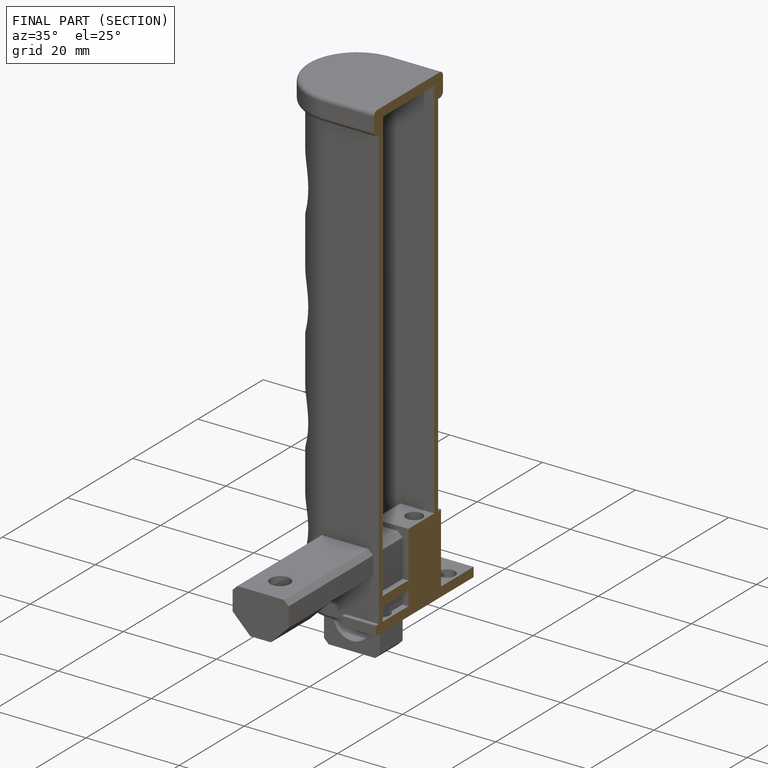
[diagram: finished part — half-section view (interior)]
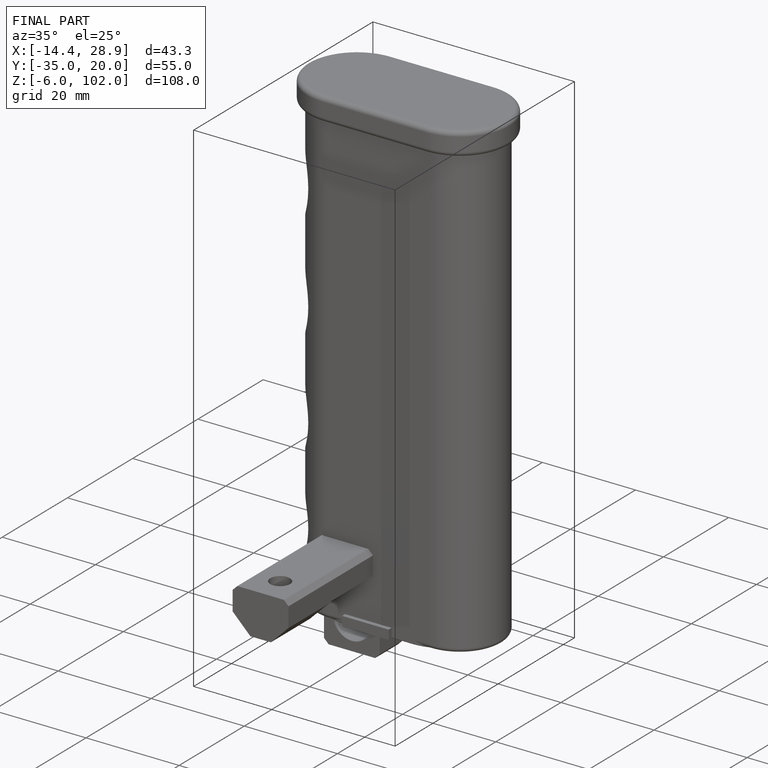
[diagram: finished part — iso view with bounding-box wireframe]
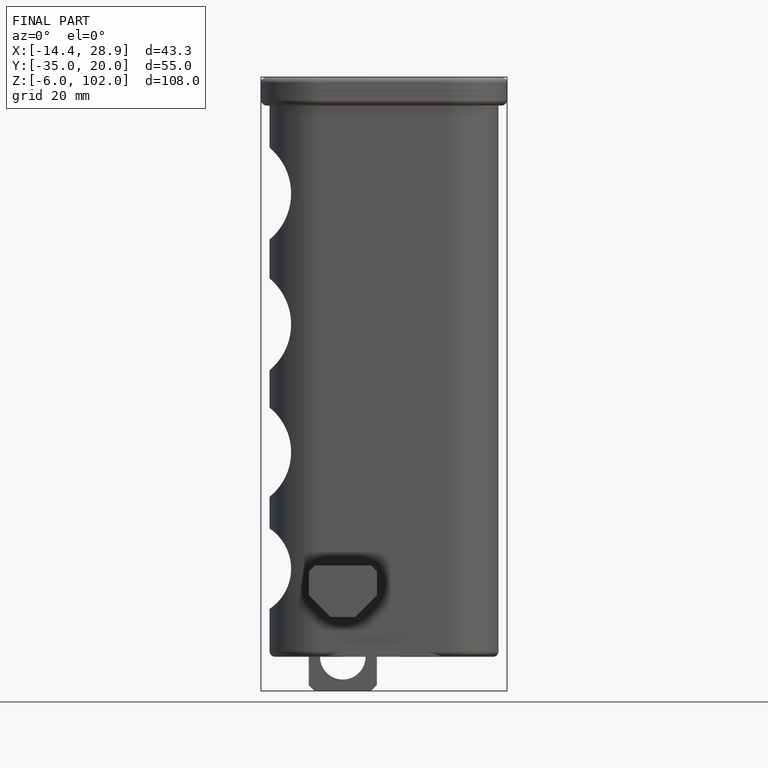
[diagram: finished part — front view with bounding-box wireframe]
